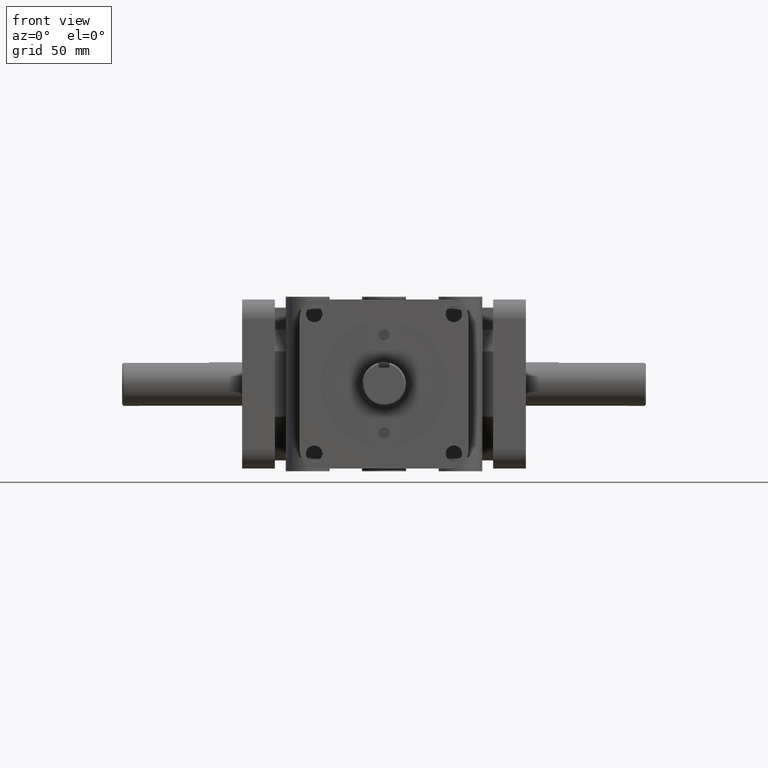
[diagram: clean part render]
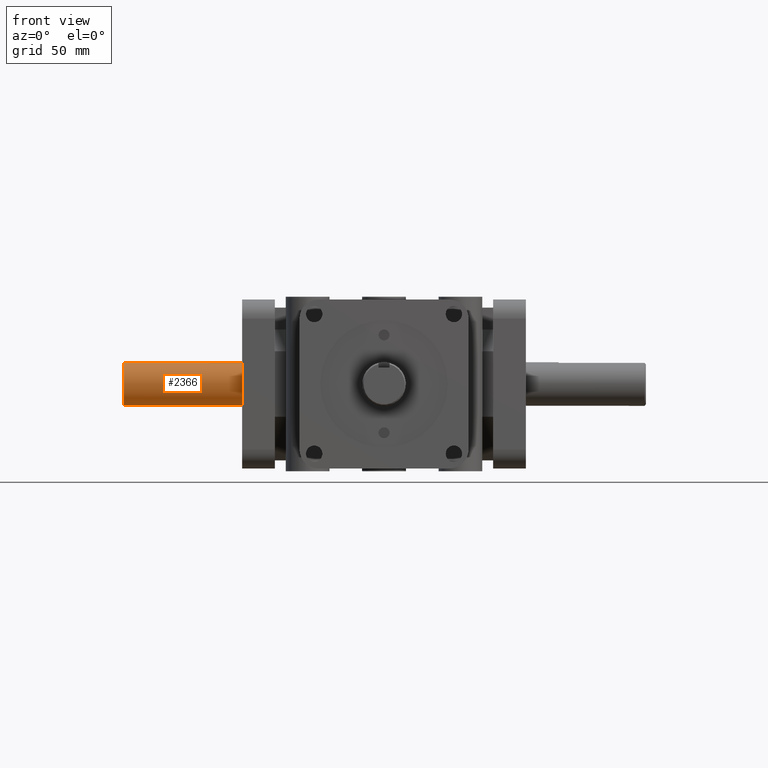
[diagram: same view with one face highlighted and labeled with its STEP entity id]
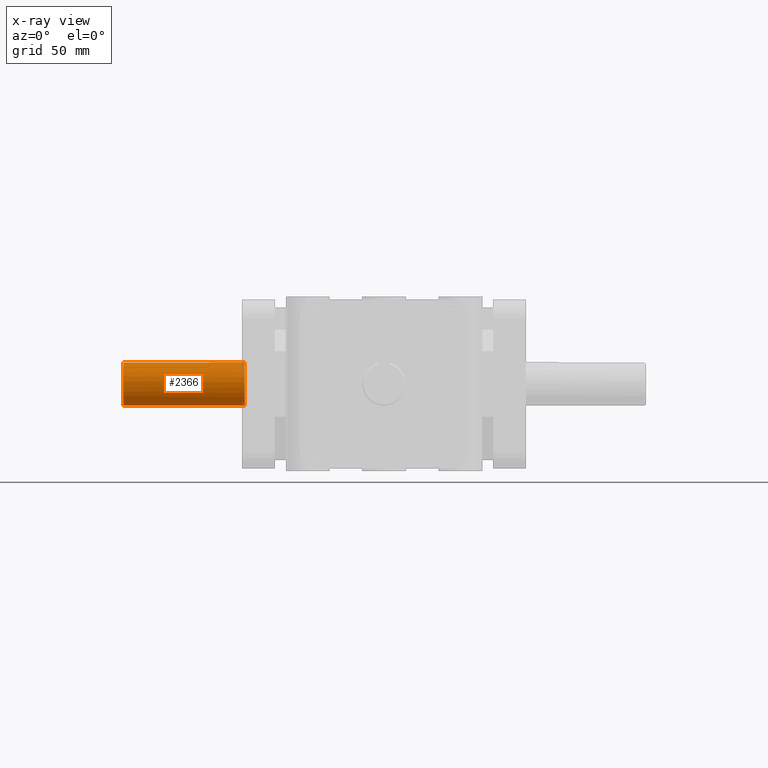
[diagram: x-ray of the same camera — body ghosted, the highlighted face saturated]
A machine part, front view. The second image highlights one B-rep face of the part: STEP entity #2366.
The next image is the same camera in x-ray: the body ghosted, the highlighted face saturated — about 0% of this face is hidden behind the body in this view.
In plain terms, the highlighted cylindrical surface (bore or boss wall) has radius 12.7 mm, axis along (-1, -0, 0).
Its self-contained STEP definition (entity closure, byte-faithful):
#66=CYLINDRICAL_SURFACE('',#2602,0.5);
#114=CIRCLE('',#2499,0.5);
#159=CIRCLE('',#2603,0.5);
#160=CIRCLE('',#2604,0.5);
#273=VERTEX_POINT('',#3476);
#368=VERTEX_POINT('',#3767);
#369=VERTEX_POINT('',#3768);
#370=VERTEX_POINT('',#3770);
#371=VERTEX_POINT('',#3772);
#553=VECTOR('',#3107,1.);
#554=VECTOR('',#3110,1.);
#754=LINE('',#3769,#553);
#755=LINE('',#3773,#554);
#921=EDGE_CURVE('',#273,#273,#114,.T.);
#1050=EDGE_CURVE('',#368,#369,#159,.T.);
#1051=EDGE_CURVE('',#368,#370,#754,.T.);
#1052=EDGE_CURVE('',#370,#371,#160,.T.);
#1053=EDGE_CURVE('',#371,#369,#755,.T.);
#1512=ORIENTED_EDGE('',*,*,#921,.F.);
#1513=ORIENTED_EDGE('',*,*,#1050,.F.);
#1514=ORIENTED_EDGE('',*,*,#1051,.T.);
#1515=ORIENTED_EDGE('',*,*,#1052,.T.);
#1516=ORIENTED_EDGE('',*,*,#1053,.T.);
#1949=EDGE_LOOP('',(#1512));
#1950=EDGE_LOOP('',(#1513,#1514,#1515,#1516));
#2184=FACE_BOUND('',#1949,.T.);
#2185=FACE_BOUND('',#1950,.T.);
#2366=ADVANCED_FACE('',(#2184,#2185),#66,.T.);
#2499=AXIS2_PLACEMENT_3D('',#3475,#2844,#2845);
#2602=AXIS2_PLACEMENT_3D('',#3765,#3103,#3104);
#2603=AXIS2_PLACEMENT_3D('',#3766,#3105,#3106);
#2604=AXIS2_PLACEMENT_3D('',#3771,#3108,#3109);
#2844=DIRECTION('',(1.,0.,0.));
#2845=DIRECTION('',(0.,-0.5,0.));
#3103=DIRECTION('',(-1.,-6.12303176911189E-017,0.));
#3104=DIRECTION('',(3.06151588455594E-017,-0.5,0.));
#3105=DIRECTION('',(-1.,-6.12303176911189E-017,0.));
#3106=DIRECTION('',(3.06151588455594E-017,-0.5,0.));
#3107=DIRECTION('',(1.,6.12303176911189E-017,0.));
#3108=DIRECTION('',(1.,6.12303176911189E-017,0.));
#3109=DIRECTION('',(3.06151588455594E-017,-0.5,0.));
#3110=DIRECTION('',(-1.,-6.12303176911189E-017,0.));
#3475=CARTESIAN_POINT('',(-3.19,6.,0.));
#3476=CARTESIAN_POINT('',(-3.19,6.5,-7.27364132466213E-016));
#3765=CARTESIAN_POINT('',(-3.2492125,6.,0.));
#3766=CARTESIAN_POINT('',(-5.9692125,6.,0.));
#3767=CARTESIAN_POINT('',(-5.9692125,6.125,0.484122918275927));
#3768=CARTESIAN_POINT('',(-5.9692125,5.875,0.484122918275927));
#3769=CARTESIAN_POINT('',(-3.2492125,6.125,0.484122918275927));
#3770=CARTESIAN_POINT('',(-4.,6.125,0.484122918275927));
#3771=CARTESIAN_POINT('',(-4.,6.,0.));
#3772=CARTESIAN_POINT('',(-4.,5.875,0.484122918275927));
#3773=CARTESIAN_POINT('',(-3.2492125,5.875,0.484122918275927));